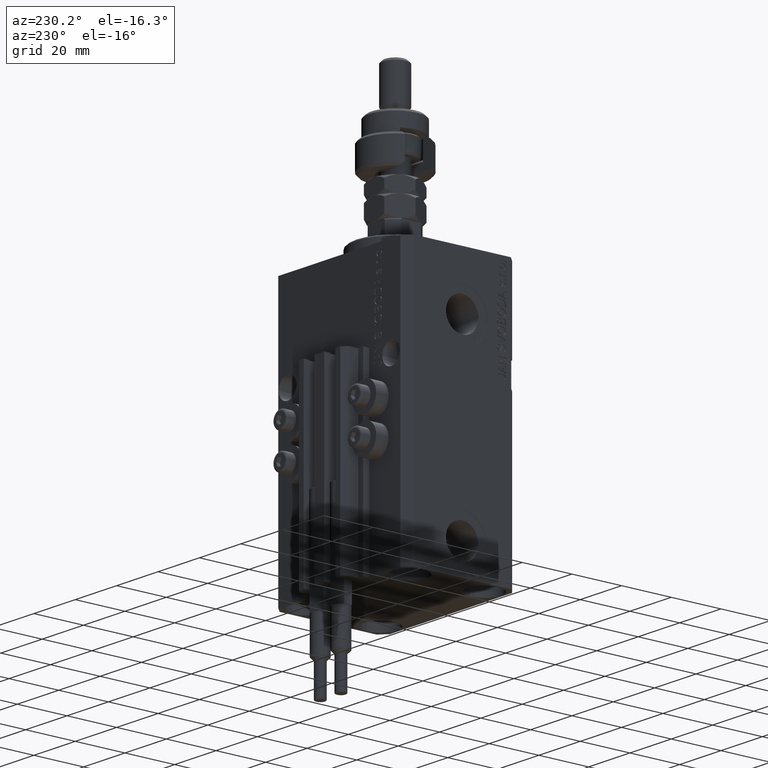
[diagram: clean part render]
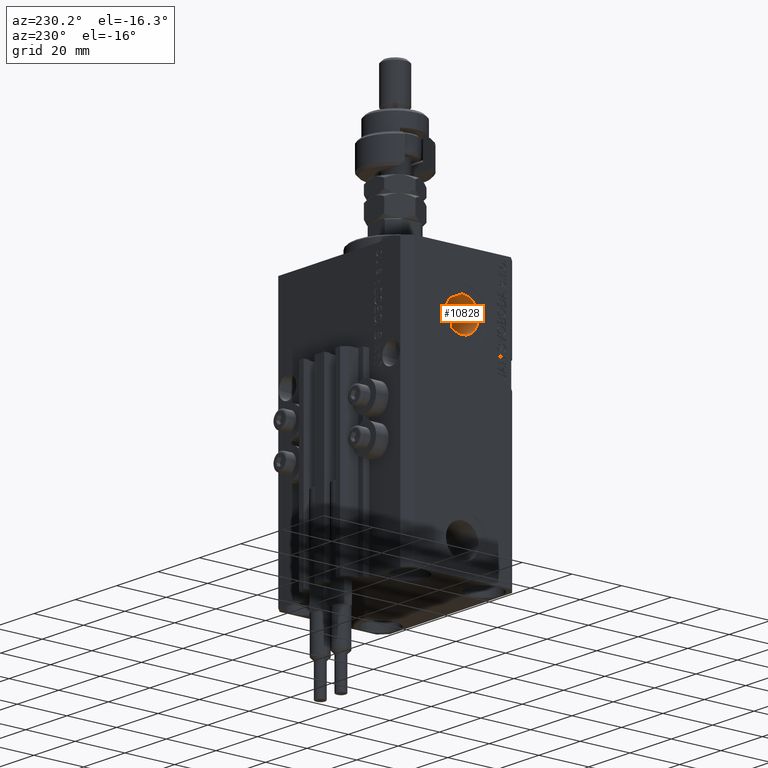
[diagram: same view with one face highlighted and labeled with its STEP entity id]
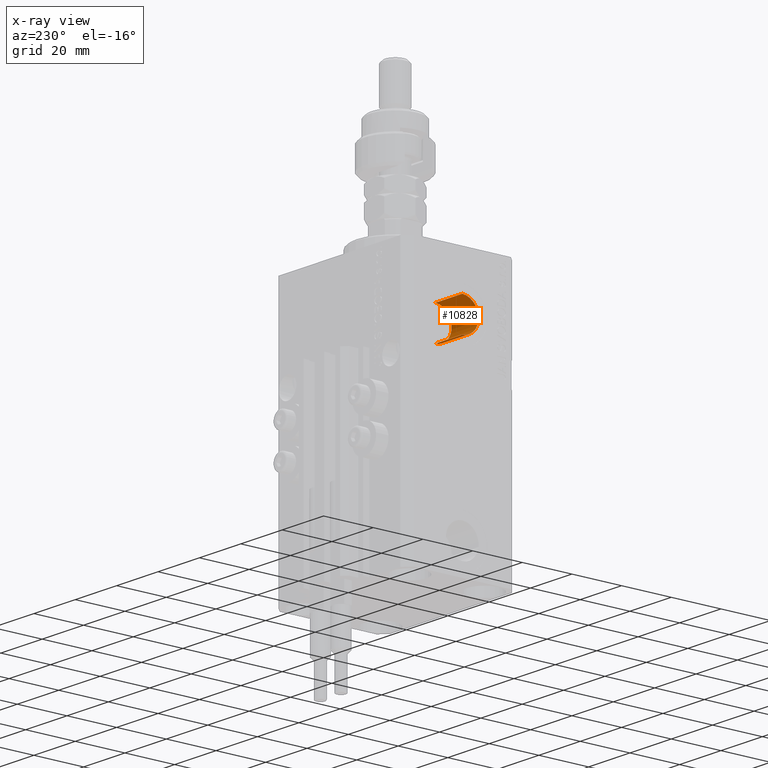
[diagram: x-ray of the same camera — body ghosted, the highlighted face saturated]
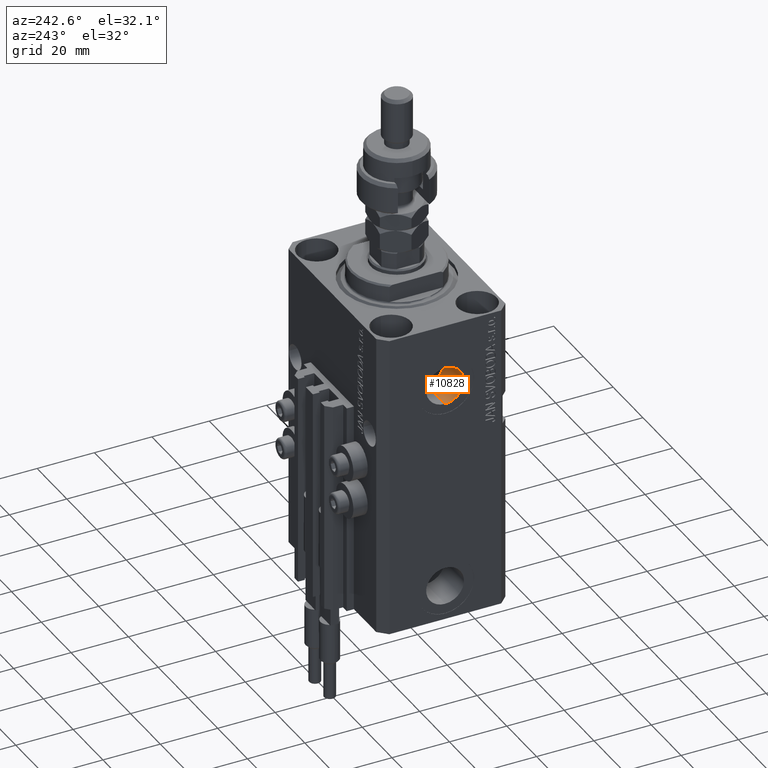
[diagram: same view with one face highlighted and labeled with its STEP entity id]
A machine part, auxiliary view. The second image highlights one B-rep face of the part: STEP entity #10828.
The next image is the same camera in x-ray: the body ghosted, the highlighted face saturated — about 0% of this face is hidden behind the body in this view.
A second angle (auxiliary view) of the same face is appended — the face is thin or edge-on in the first view.
In plain terms, the highlighted cylindrical surface (edge-blend (fillet) strip) has radius 6.58 mm, axis along (-1, -0, -0).
Its self-contained STEP definition (entity closure, byte-faithful):
#517 = CARTESIAN_POINT ( 'NONE',  ( -32.39999999999650271, 0.000000000000000000, -22.00000000000000000 ) ) ;
#4214 = LINE ( 'NONE', #20036, #6146 ) ;
#4588 = EDGE_CURVE ( 'NONE', #15471, #18532, #4214, .T. ) ;
#4822 = EDGE_CURVE ( 'NONE', #18532, #8528, #21103, .T. ) ;
#5237 = CYLINDRICAL_SURFACE ( 'NONE', #34577, 6.579999999999999183 ) ;
#5493 = DIRECTION ( 'NONE',  ( -1.000000000000000000, -0.000000000000000000, -0.000000000000000000 ) ) ;
#6146 = VECTOR ( 'NONE', #28350, 1000.000000000000000 ) ;
#6278 = CARTESIAN_POINT ( 'NONE',  ( -19.39999999999650271, 8.058175938389579572E-16, -28.57999999999999829 ) ) ;
#8528 = VERTEX_POINT ( 'NONE', #50297 ) ;
#10828 = ADVANCED_FACE ( 'NONE', ( #32508 ), #5237, .F. ) ;
#14119 = CARTESIAN_POINT ( 'NONE',  ( -19.39999999999650271, 0.000000000000000000, -15.41999999999999993 ) ) ;
#15471 = VERTEX_POINT ( 'NONE', #6278 ) ;
#17658 = DIRECTION ( 'NONE',  ( 0.000000000000000000, 0.000000000000000000, 1.000000000000000000 ) ) ;
#18532 = VERTEX_POINT ( 'NONE', #24437 ) ;
#20036 = CARTESIAN_POINT ( 'NONE',  ( -19.39999999999650271, 8.058175938389580558E-16, -28.57999999999999829 ) ) ;
#20526 = VERTEX_POINT ( 'NONE', #34179 ) ;
#21069 = DIRECTION ( 'NONE',  ( 0.000000000000000000, 0.000000000000000000, 1.000000000000000000 ) ) ;
#21103 = CIRCLE ( 'NONE', #28560, 6.579999999999999183 ) ;
#21611 = ORIENTED_EDGE ( 'NONE', *, *, #40921, .F. ) ;
#23369 = DIRECTION ( 'NONE',  ( -1.000000000000000000, 0.000000000000000000, 0.000000000000000000 ) ) ;
#24437 = CARTESIAN_POINT ( 'NONE',  ( -32.39999999999650271, 8.058175938389579572E-16, -28.57999999999999829 ) ) ;
#26764 = VECTOR ( 'NONE', #29961, 1000.000000000000000 ) ;
#27026 = EDGE_CURVE ( 'NONE', #20526, #8528, #49682, .T. ) ;
#28350 = DIRECTION ( 'NONE',  ( -1.000000000000000000, -0.000000000000000000, -0.000000000000000000 ) ) ;
#28560 = AXIS2_PLACEMENT_3D ( 'NONE', #517, #23369, #35330 ) ;
#29356 = CIRCLE ( 'NONE', #41759, 6.579999999999999183 ) ;
#29961 = DIRECTION ( 'NONE',  ( -1.000000000000000000, -0.000000000000000000, -0.000000000000000000 ) ) ;
#32508 = FACE_OUTER_BOUND ( 'NONE', #45468, .T. ) ;
#32944 = ORIENTED_EDGE ( 'NONE', *, *, #4588, .T. ) ;
#33133 = ORIENTED_EDGE ( 'NONE', *, *, #4822, .T. ) ;
#34179 = CARTESIAN_POINT ( 'NONE',  ( -19.39999999999650271, 0.000000000000000000, -15.41999999999999993 ) ) ;
#34577 = AXIS2_PLACEMENT_3D ( 'NONE', #40286, #5493, #21069 ) ;
#35330 = DIRECTION ( 'NONE',  ( 0.000000000000000000, 0.000000000000000000, 1.000000000000000000 ) ) ;
#37664 = DIRECTION ( 'NONE',  ( -1.000000000000000000, 0.000000000000000000, 0.000000000000000000 ) ) ;
#40286 = CARTESIAN_POINT ( 'NONE',  ( -19.39999999999650271, 0.000000000000000000, -22.00000000000000000 ) ) ;
#40921 = EDGE_CURVE ( 'NONE', #15471, #20526, #29356, .T. ) ;
#41759 = AXIS2_PLACEMENT_3D ( 'NONE', #45163, #37664, #17658 ) ;
#42312 = ORIENTED_EDGE ( 'NONE', *, *, #27026, .F. ) ;
#45163 = CARTESIAN_POINT ( 'NONE',  ( -19.39999999999650271, 0.000000000000000000, -22.00000000000000000 ) ) ;
#45468 = EDGE_LOOP ( 'NONE', ( #21611, #32944, #33133, #42312 ) ) ;
#49682 = LINE ( 'NONE', #14119, #26764 ) ;
#50297 = CARTESIAN_POINT ( 'NONE',  ( -32.39999999999650271, 0.000000000000000000, -15.41999999999999993 ) ) ;